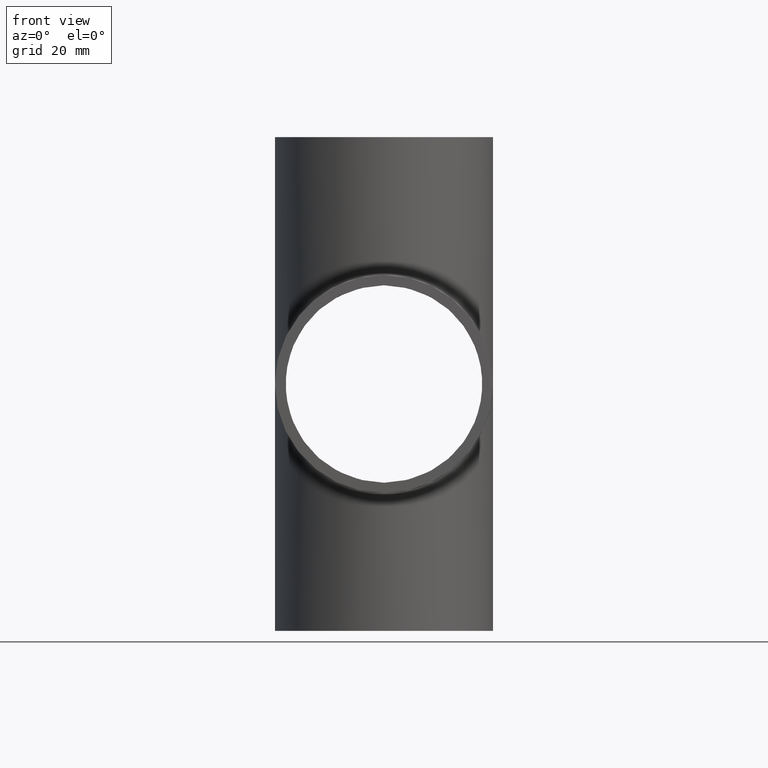
[diagram: clean part render]
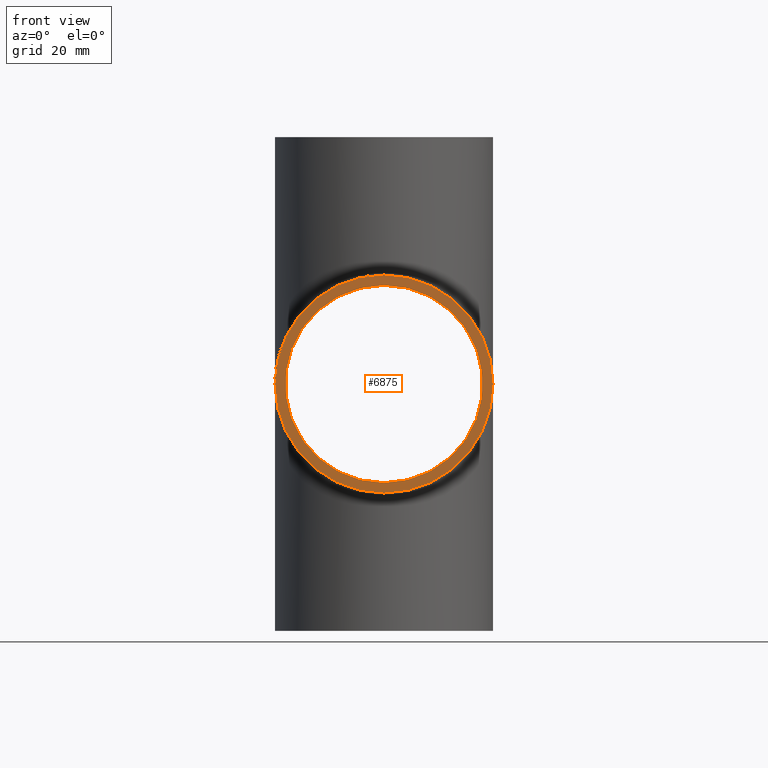
[diagram: same view with one face highlighted and labeled with its STEP entity id]
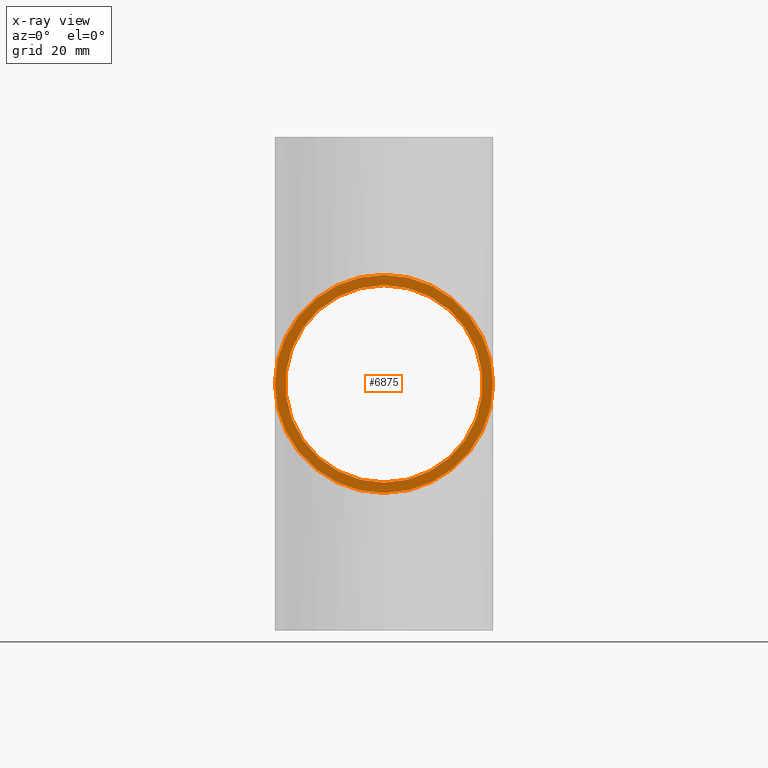
[diagram: x-ray of the same camera — body ghosted, the highlighted face saturated]
A machine part, front view. The second image highlights one B-rep face of the part: STEP entity #6875.
The next image is the same camera in x-ray: the body ghosted, the highlighted face saturated — about 0% of this face is hidden behind the body in this view.
In plain terms, the highlighted planar face has unit normal (0, 1, 0).
Its self-contained STEP definition (entity closure, byte-faithful):
#63 = CARTESIAN_POINT ( 'NONE',  ( 0.0000000000000000000, -48.00000000000000000, -19.20000000000000300 ) ) ;
#483 = CARTESIAN_POINT ( 'NONE',  ( 0.0000000000000000000, -48.00000000000000000, 0.0000000000000000000 ) ) ;
#638 = CARTESIAN_POINT ( 'NONE',  ( 0.0000000000000000000, -48.00000000000000000, 0.0000000000000000000 ) ) ;
#874 = EDGE_LOOP ( 'NONE', ( #2498, #2248 ) ) ;
#1083 = ORIENTED_EDGE ( 'NONE', *, *, #10281, .F. ) ;
#1338 = DIRECTION ( 'NONE',  ( 0.0000000000000000000, 0.0000000000000000000, 1.000000000000000000 ) ) ;
#1491 = ORIENTED_EDGE ( 'NONE', *, *, #6143, .F. ) ;
#1744 = VERTEX_POINT ( 'NONE', #9551 ) ;
#1905 = DIRECTION ( 'NONE',  ( 0.0000000000000000000, 1.000000000000000000, 0.0000000000000000000 ) ) ;
#2248 = ORIENTED_EDGE ( 'NONE', *, *, #6501, .T. ) ;
#2498 = ORIENTED_EDGE ( 'NONE', *, *, #2534, .T. ) ;
#2534 = EDGE_CURVE ( 'NONE', #4777, #1744, #6084, .T. ) ;
#2673 = CIRCLE ( 'NONE', #6623, 21.19999999999999900 ) ;
#3008 = CARTESIAN_POINT ( 'NONE',  ( 2.596251214192388800E-015, -48.00000000000000000, 21.19999999999999900 ) ) ;
#3460 = CARTESIAN_POINT ( 'NONE',  ( 0.0000000000000000000, -48.00000000000000000, 0.0000000000000000000 ) ) ;
#3970 = DIRECTION ( 'NONE',  ( 0.0000000000000000000, 1.000000000000000000, 0.0000000000000000000 ) ) ;
#4261 = AXIS2_PLACEMENT_3D ( 'NONE', #6781, #1905, #7616 ) ;
#4276 = DIRECTION ( 'NONE',  ( 0.0000000000000000000, 0.0000000000000000000, 1.000000000000000000 ) ) ;
#4389 = CARTESIAN_POINT ( 'NONE',  ( 0.0000000000000000000, -48.00000000000000000, 0.0000000000000000000 ) ) ;
#4423 = CARTESIAN_POINT ( 'NONE',  ( 0.0000000000000000000, -48.00000000000000000, -21.19999999999999900 ) ) ;
#4610 = AXIS2_PLACEMENT_3D ( 'NONE', #638, #3970, #9697 ) ;
#4777 = VERTEX_POINT ( 'NONE', #63 ) ;
#5180 = DIRECTION ( 'NONE',  ( 0.0000000000000000000, 0.0000000000000000000, 1.000000000000000000 ) ) ;
#5335 = FACE_OUTER_BOUND ( 'NONE', #5346, .T. ) ;
#5346 = EDGE_LOOP ( 'NONE', ( #1491, #1083 ) ) ;
#6084 = CIRCLE ( 'NONE', #7872, 19.20000000000000300 ) ;
#6143 = EDGE_CURVE ( 'NONE', #6181, #7851, #2673, .T. ) ;
#6181 = VERTEX_POINT ( 'NONE', #4423 ) ;
#6205 = DIRECTION ( 'NONE',  ( 0.0000000000000000000, 1.000000000000000000, 0.0000000000000000000 ) ) ;
#6501 = EDGE_CURVE ( 'NONE', #1744, #4777, #9323, .T. ) ;
#6623 = AXIS2_PLACEMENT_3D ( 'NONE', #4389, #10094, #5180 ) ;
#6781 = CARTESIAN_POINT ( 'NONE',  ( 0.0000000000000000000, -48.00000000000000000, 0.0000000000000000000 ) ) ;
#6875 = ADVANCED_FACE ( 'NONE', ( #7526, #5335 ), #8043, .F. ) ;
#7379 = CIRCLE ( 'NONE', #9000, 21.19999999999999900 ) ;
#7526 = FACE_BOUND ( 'NONE', #874, .T. ) ;
#7616 = DIRECTION ( 'NONE',  ( 0.0000000000000000000, 0.0000000000000000000, 1.000000000000000000 ) ) ;
#7851 = VERTEX_POINT ( 'NONE', #3008 ) ;
#7872 = AXIS2_PLACEMENT_3D ( 'NONE', #483, #6205, #1338 ) ;
#8043 = PLANE ( 'NONE',  #4610 ) ;
#9000 = AXIS2_PLACEMENT_3D ( 'NONE', #3460, #9163, #4276 ) ;
#9163 = DIRECTION ( 'NONE',  ( 0.0000000000000000000, 1.000000000000000000, 0.0000000000000000000 ) ) ;
#9323 = CIRCLE ( 'NONE', #4261, 19.20000000000000300 ) ;
#9551 = CARTESIAN_POINT ( 'NONE',  ( 2.351321854362918100E-015, -48.00000000000000000, 19.20000000000000300 ) ) ;
#9697 = DIRECTION ( 'NONE',  ( 0.0000000000000000000, -0.0000000000000000000, 1.000000000000000000 ) ) ;
#10094 = DIRECTION ( 'NONE',  ( 0.0000000000000000000, 1.000000000000000000, 0.0000000000000000000 ) ) ;
#10281 = EDGE_CURVE ( 'NONE', #7851, #6181, #7379, .T. ) ;